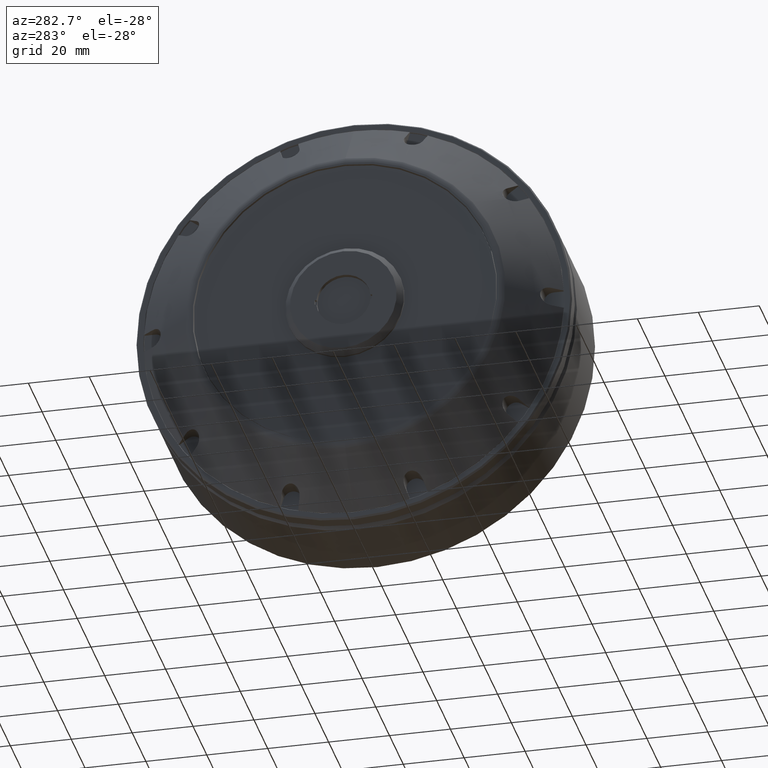
[diagram: clean part render]
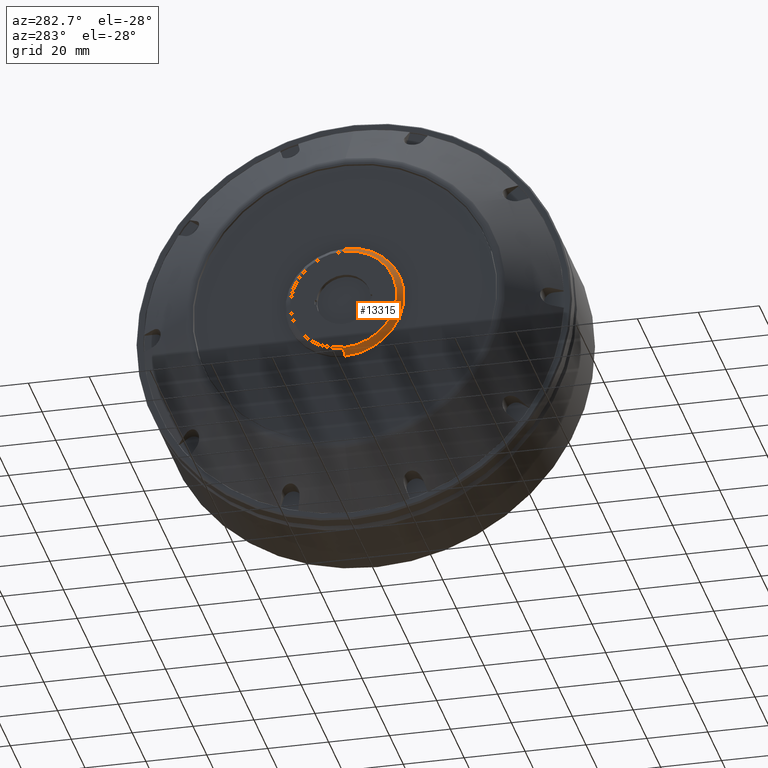
[diagram: same view with one face highlighted and labeled with its STEP entity id]
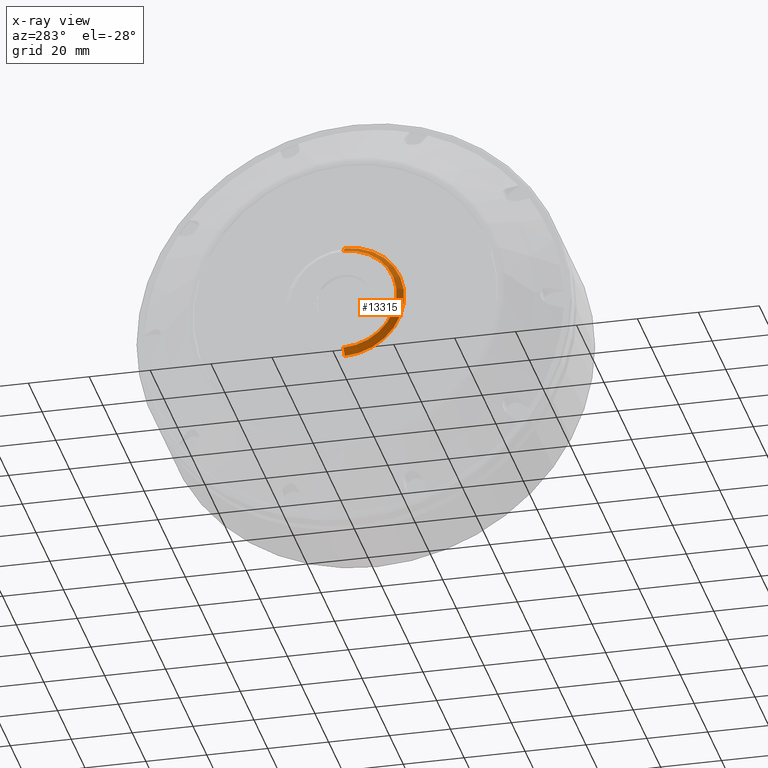
[diagram: x-ray of the same camera — body ghosted, the highlighted face saturated]
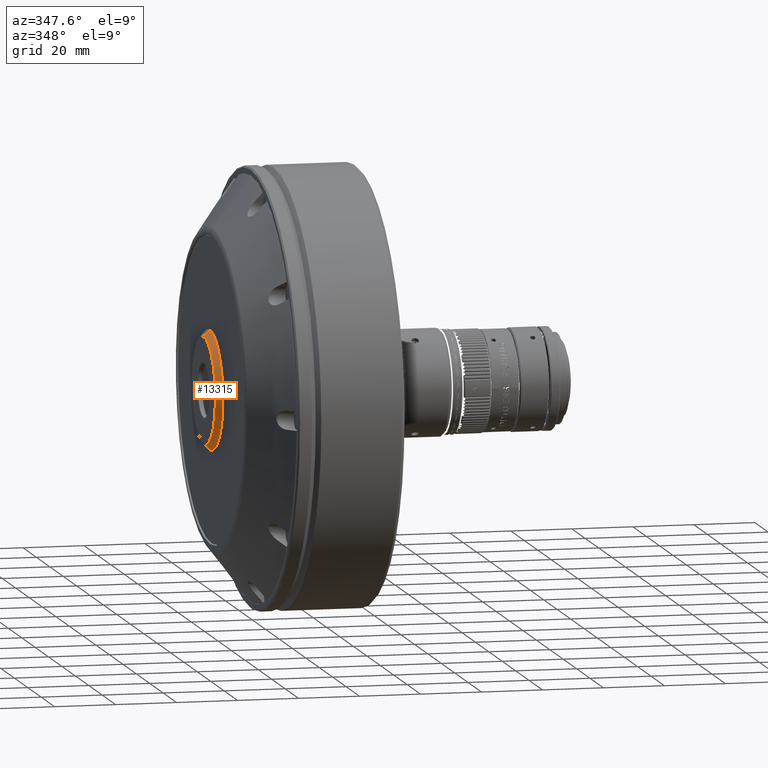
[diagram: same view with one face highlighted and labeled with its STEP entity id]
A machine part, auxiliary view. The second image highlights one B-rep face of the part: STEP entity #13315.
The next image is the same camera in x-ray: the body ghosted, the highlighted face saturated — about 0% of this face is hidden behind the body in this view.
A second angle (auxiliary view) of the same face is appended — the face is thin or edge-on in the first view.
In plain terms, the highlighted conical surface has half-angle 45 deg.
Its self-contained STEP definition (entity closure, byte-faithful):
#1672 = DIRECTION ( 'NONE',  ( 0.7071067811865493491, 0.0000000000000000000, -0.7071067811865456854 ) ) ;
#2228 = ORIENTED_EDGE ( 'NONE', *, *, #15558, .F. ) ;
#2495 = CARTESIAN_POINT ( 'NONE',  ( -55.93994599999999195, 0.0000000000000000000, -17.49999999999999645 ) ) ;
#3461 = DIRECTION ( 'NONE',  ( 0.7071067811865493491, 8.659560562354910671E-17, 0.7071067811865456854 ) ) ;
#5189 = CARTESIAN_POINT ( 'NONE',  ( -55.93994599999999195, 0.0000000000000000000, 0.0000000000000000000 ) ) ;
#5593 = ORIENTED_EDGE ( 'NONE', *, *, #16341, .T. ) ;
#7515 = CARTESIAN_POINT ( 'NONE',  ( -55.93994599999999195, 0.0000000000000000000, 0.0000000000000000000 ) ) ;
#7549 = FACE_OUTER_BOUND ( 'NONE', #8092, .T. ) ;
#8092 = EDGE_LOOP ( 'NONE', ( #2228, #27935, #5593, #27801 ) ) ;
#8336 = EDGE_CURVE ( 'NONE', #15321, #18037, #15178, .T. ) ;
#10239 = DIRECTION ( 'NONE',  ( 0.0000000000000000000, 0.0000000000000000000, -1.000000000000000000 ) ) ;
#10448 = AXIS2_PLACEMENT_3D ( 'NONE', #5189, #17828, #18681 ) ;
#12927 = CARTESIAN_POINT ( 'NONE',  ( -55.93994599999999195, 2.265596578422603002E-15, 17.49999999999999645 ) ) ;
#13315 = ADVANCED_FACE ( 'NONE', ( #7549 ), #29857, .T. ) ;
#15178 = CIRCLE ( 'NONE', #30769, 19.50000000000000000 ) ;
#15321 = VERTEX_POINT ( 'NONE', #21540 ) ;
#15558 = EDGE_CURVE ( 'NONE', #22302, #15321, #21838, .T. ) ;
#15810 = AXIS2_PLACEMENT_3D ( 'NONE', #7515, #33306, #28230 ) ;
#16341 = EDGE_CURVE ( 'NONE', #28732, #18037, #25264, .T. ) ;
#17828 = DIRECTION ( 'NONE',  ( 1.000000000000000000, 0.0000000000000000000, 0.0000000000000000000 ) ) ;
#18037 = VERTEX_POINT ( 'NONE', #23100 ) ;
#18681 = DIRECTION ( 'NONE',  ( 0.0000000000000000000, 0.0000000000000000000, -1.000000000000000000 ) ) ;
#21300 = VECTOR ( 'NONE', #1672, 1000.000000000000000 ) ;
#21540 = CARTESIAN_POINT ( 'NONE',  ( -53.93994599999997774, 0.0000000000000000000, 19.50000000000000000 ) ) ;
#21838 = LINE ( 'NONE', #24186, #27258 ) ;
#22302 = VERTEX_POINT ( 'NONE', #12927 ) ;
#22906 = DIRECTION ( 'NONE',  ( 1.000000000000000000, 0.0000000000000000000, 0.0000000000000000000 ) ) ;
#23100 = CARTESIAN_POINT ( 'NONE',  ( -53.93994599999997774, 2.388061258337338939E-15, -19.50000000000000000 ) ) ;
#23601 = EDGE_CURVE ( 'NONE', #28732, #22302, #29253, .T. ) ;
#24186 = CARTESIAN_POINT ( 'NONE',  ( -55.93994599999999195, 2.143131898507867459E-15, 17.49999999999999645 ) ) ;
#25264 = LINE ( 'NONE', #30154, #21300 ) ;
#27258 = VECTOR ( 'NONE', #3461, 1000.000000000000000 ) ;
#27801 = ORIENTED_EDGE ( 'NONE', *, *, #8336, .F. ) ;
#27935 = ORIENTED_EDGE ( 'NONE', *, *, #23601, .F. ) ;
#28230 = DIRECTION ( 'NONE',  ( 0.0000000000000000000, 0.0000000000000000000, -1.000000000000000000 ) ) ;
#28732 = VERTEX_POINT ( 'NONE', #2495 ) ;
#29253 = CIRCLE ( 'NONE', #15810, 17.49999999999999645 ) ;
#29857 = CONICAL_SURFACE ( 'NONE', #10448, 17.49999999999999645, 0.7853981633974457255 ) ;
#30154 = CARTESIAN_POINT ( 'NONE',  ( -55.93994599999999195, 0.0000000000000000000, -17.49999999999999645 ) ) ;
#30769 = AXIS2_PLACEMENT_3D ( 'NONE', #32855, #22906, #10239 ) ;
#32855 = CARTESIAN_POINT ( 'NONE',  ( -53.93994599999997774, 0.0000000000000000000, 0.0000000000000000000 ) ) ;
#33306 = DIRECTION ( 'NONE',  ( -1.000000000000000000, -0.0000000000000000000, -0.0000000000000000000 ) ) ;